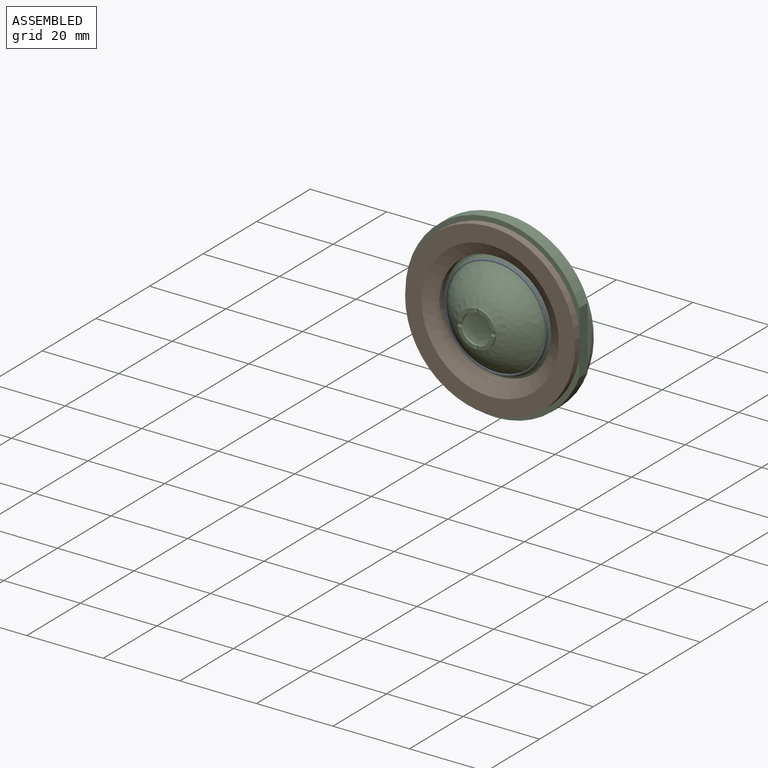
[diagram: assembled view]
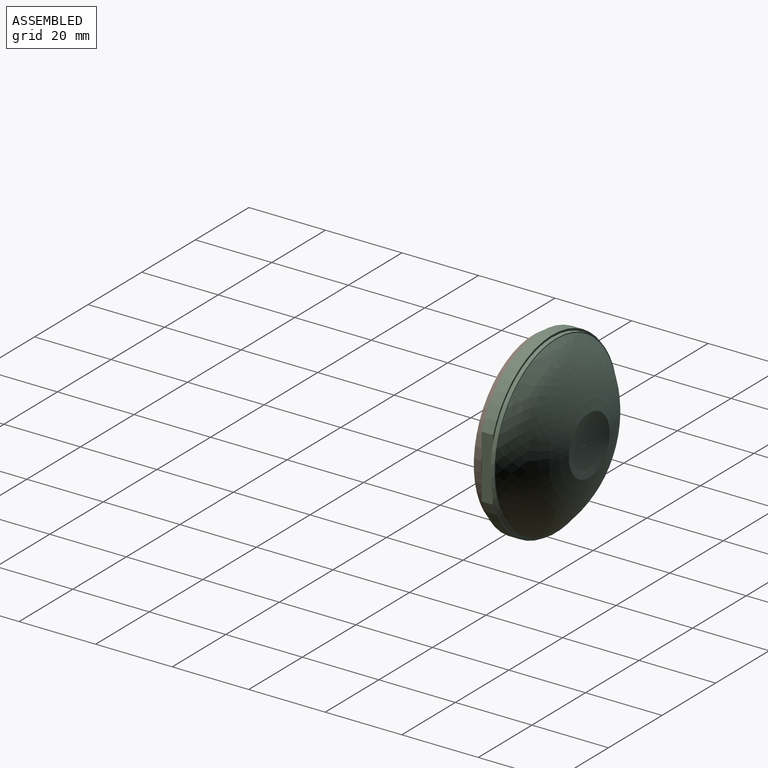
[diagram: assembled view, second angle]
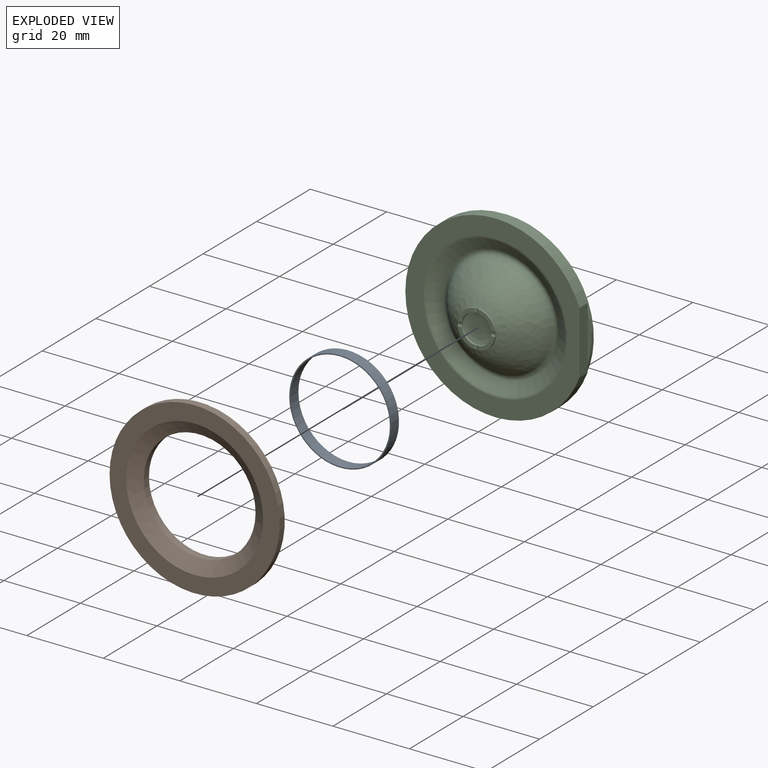
[diagram: exploded view]
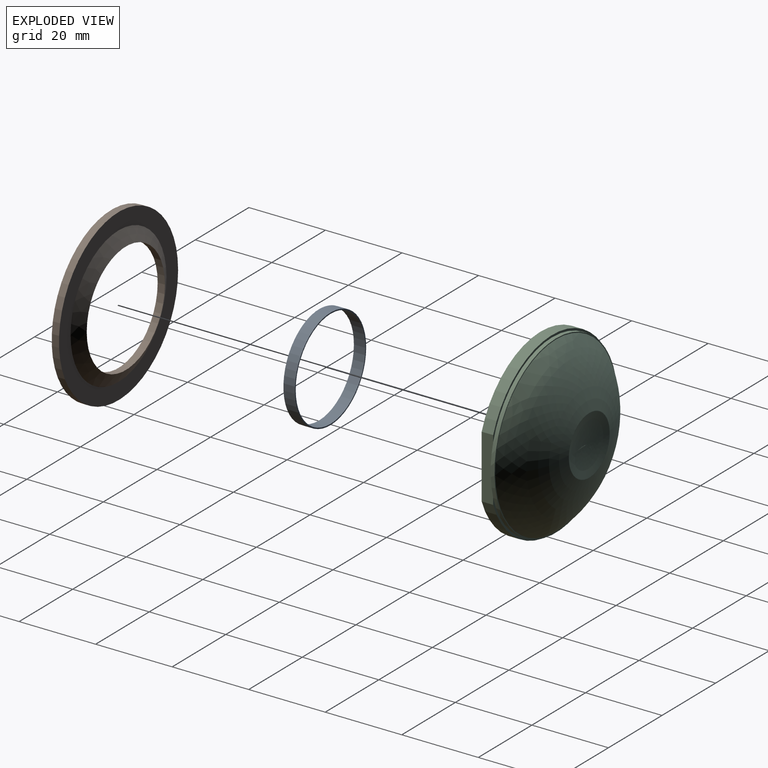
[diagram: exploded view, second angle]
ASSEMBLY  parts=3 mates=2
PART A: 4 faces, bbox 26.6x26.6x3 mm
  f0: cylinder r=13mm len=26mm, axis (0,0,-1), area 245mm2, adj f1,f3
  f1: plane 26.6x26.6mm, normal (0,0,-1), area 24.8mm2, adj f0,f2
  f2: cylinder r=13.3mm len=26.6mm, axis (0,0,-1), area 250.7mm2, adj f1,f3
  f3: plane 26.6x26.6mm, normal (0,0,1), area 24.8mm2, adj f0,f2
PART B: 6 faces, bbox 44.5x44.5x3.8 mm
  f0: cylinder r=22.23mm len=44.45mm, axis (0,0,-1), area 266mm2, adj f1,f5
  f1: plane 44.45x44.45mm, normal (0,0,-1), area 545.2mm2, adj f0,f2
  f2: cone r=17.9mm half-angle=60deg, axis (0,0,-1), area 389.1mm2, adj f1,f3
  f3: cylinder r=14.6mm len=29.2mm, axis (0,0,-1), area 174.8mm2, adj f2,f4
  f4: cone r=17.9mm half-angle=60deg, axis (0,0,-1), area 389.1mm2, adj f3,f5
  f5: plane 44.45x44.45mm, normal (0,0,1), area 545.2mm2, adj f0,f4
PART C: 29 faces, bbox 46.4x19.8x47 mm
  f0: plane 46.99x45.49mm, normal (0,-1,0), area 610.8mm2, adj f1,f26,f27
  f1: cylinder r=23.49mm len=46.99mm, axis (0,1,0), area 392.3mm2, adj f0,f2,f27
  f2: plane 46.99x45.49mm, normal (0,1,0), area 71mm2, adj f1,f20,f27
  f3: cylinder r=3.88mm len=3.88mm, axis (0,1,0), area 1.3mm2, adj f4,f13,f23,f25
  f4: plane 4.29x4.29mm, normal (0,-1,0), area 5.8mm2, adj f3,f16,f23,f25
  f5: cylinder r=3.88mm len=3.88mm, axis (0,1,0), area 1.3mm2, adj f13,f15,f22,f24
  f6: plane 4.29x4.29mm, normal (0,-1,0), area 5.8mm2, adj f14,f16,f23,f24
  f7: cylinder r=3.88mm len=3.88mm, axis (0,1,0), area 1.3mm2, adj f8,f13,f22,f25
  f8: plane 4.29x4.29mm, normal (0,-1,0), area 5.8mm2, adj f7,f16,f22,f25
  f9: revolved ~45.4x45.4mm, area 1735.6mm2, adj f10,f21
  f10: torus R=7.62mm, axis (0,1,0), area 5.7mm2, adj f9,f11
  f11: revolved ~15.13x15.13mm, area 181.4mm2, adj f10
  f12: revolved ~7.61x7.61mm, area 46.5mm2, adj f13
  f13: cone r=3.81mm half-angle=16.8deg, axis (0,-1,0), area 6.4mm2, adj f3,f5,f7,f12,f14
  f14: cylinder r=3.88mm len=3.88mm, axis (0,1,0), area 1.3mm2, adj f6,f13,f23,f24
  f15: plane 4.29x4.29mm, normal (0,-1,0), area 5.8mm2, adj f5,f16,f22,f24
  f16: cylinder r=4.88mm len=9.77mm, axis (0,1,0), area 14.5mm2, adj f4,f6,f8,f15,f17,f22,f23,f24
  f17: revolved ~27.49x27.49mm, area 746.1mm2, adj f16,f18
  f18: torus R=14.62mm, axis (0,1,0), area 144.2mm2, adj f17,f19
  f19: cone r=15.13mm half-angle=60deg, axis (0,-1,0), area 380.4mm2, adj f18,f26
  f20: cylinder r=22.95mm len=45.9mm, axis (0,1,0), area 144.2mm2, adj f2,f21,f28
  f21: plane 45.9x45.9mm, normal (0,1,0), area 35.8mm2, adj f9,f20
  f22: cylinder r=0.75mm len=1.12mm, axis (0,0,1), area 1.3mm2, adj f5,f7,f8,f15,f16
  f23: cylinder r=0.75mm len=1.12mm, axis (0,0,1), area 1.3mm2, adj f3,f4,f6,f14,f16
  f24: cylinder r=0.75mm len=1.12mm, axis (1,0,0), area 1.3mm2, adj f5,f6,f14,f15,f16
  f25: cylinder r=0.75mm len=1.12mm, axis (1,0,0), area 1.3mm2, adj f3,f4,f7,f8,f16
  f26: torus R=18.77mm, axis (0,1,0), area 60.9mm2, adj f0,f19
  f27: plane 16.48x3mm, normal (1,0,0), area 49.4mm2, adj f0,f1,f2,f28
  f28: plane 13.07x0.95mm, normal (0,-1,0), area 8.3mm2, adj f20,f27
PLACE A rot(axis=(-1,0,0),90deg) t=(0,-13.73,0)mm
PLACE B rot(axis=(-1,0,0),90deg) t=(0,-15.63,0)mm
PLACE C at identity fixed
MATE fastened A.f0 <-> B.f0  axis (0,-1,0) through (0,-13.73,0)mm
MATE fastened C.f1 <-> B.f0  axis (0,-1,0) through (0,-13.73,0)mm
